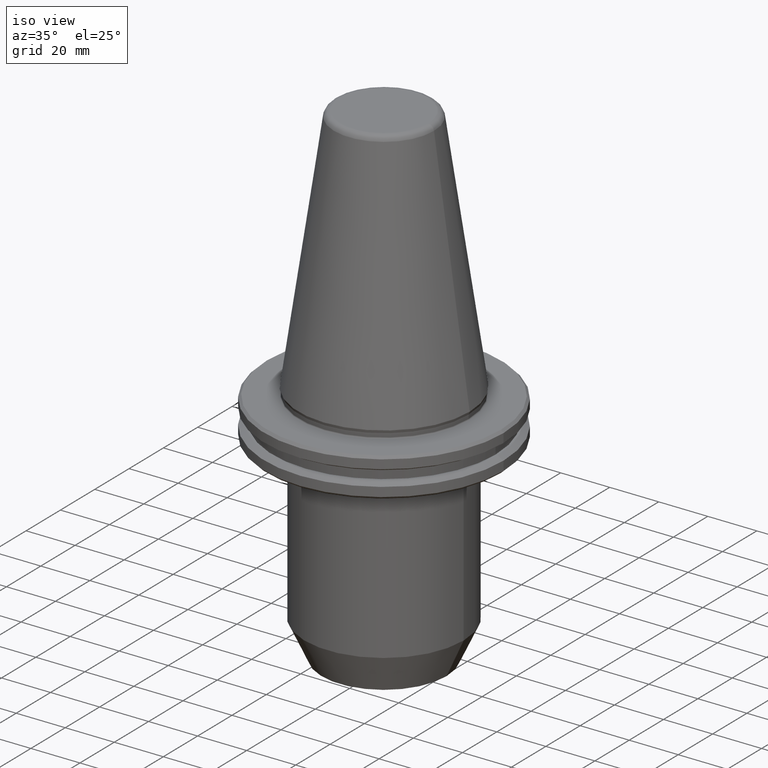
[diagram: clean part render]
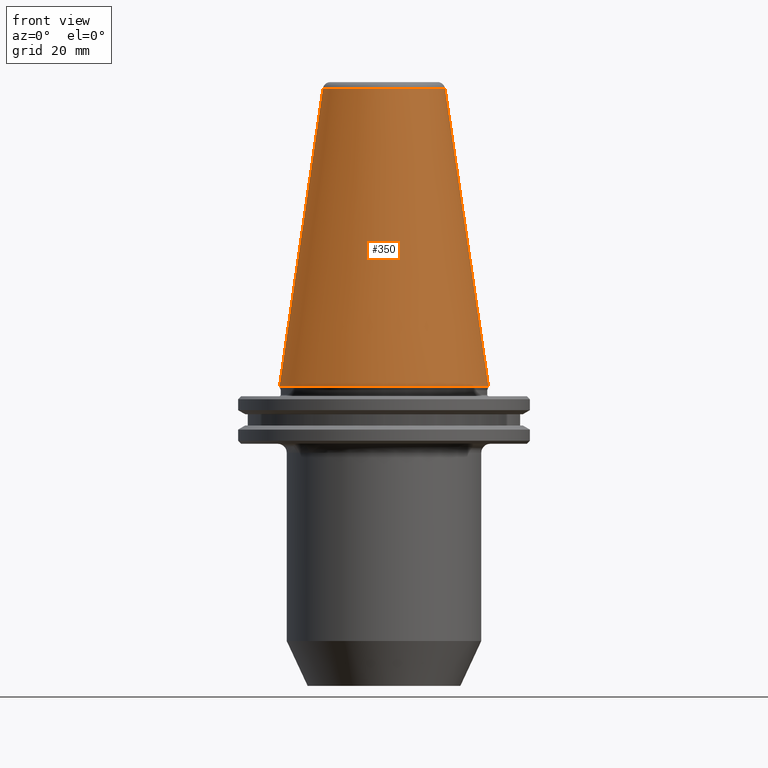
[diagram: tour spotlight — one face highlighted and labeled with its STEP entity id]
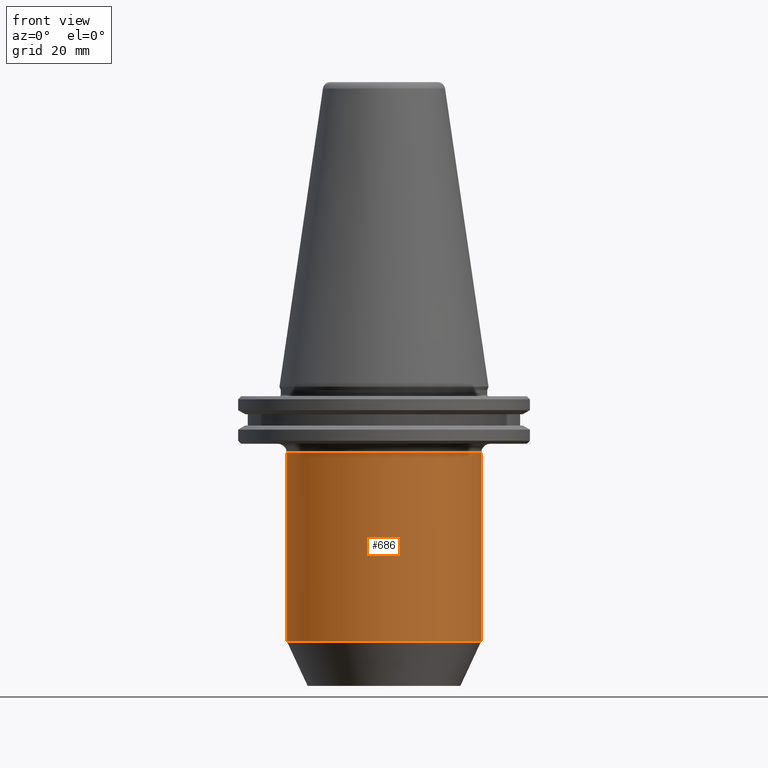
[diagram: tour spotlight — one face highlighted and labeled with its STEP entity id]
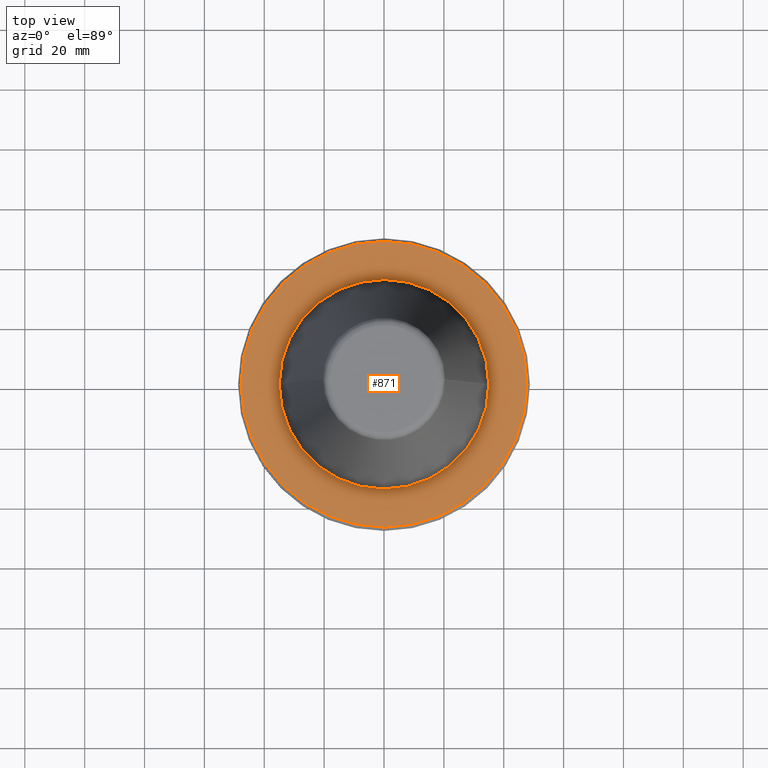
[diagram: tour spotlight — one face highlighted and labeled with its STEP entity id]
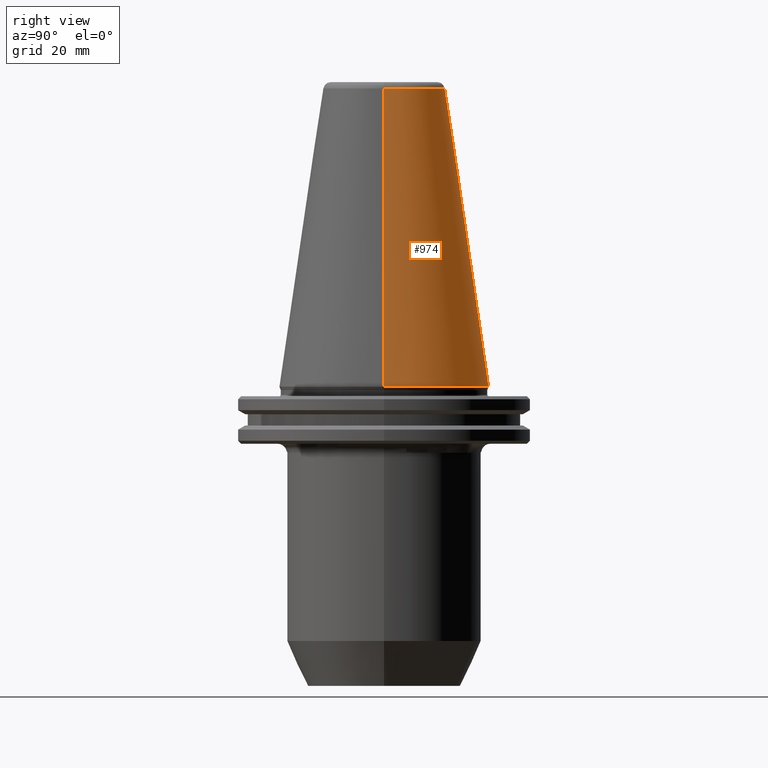
[diagram: tour spotlight — one face highlighted and labeled with its STEP entity id]
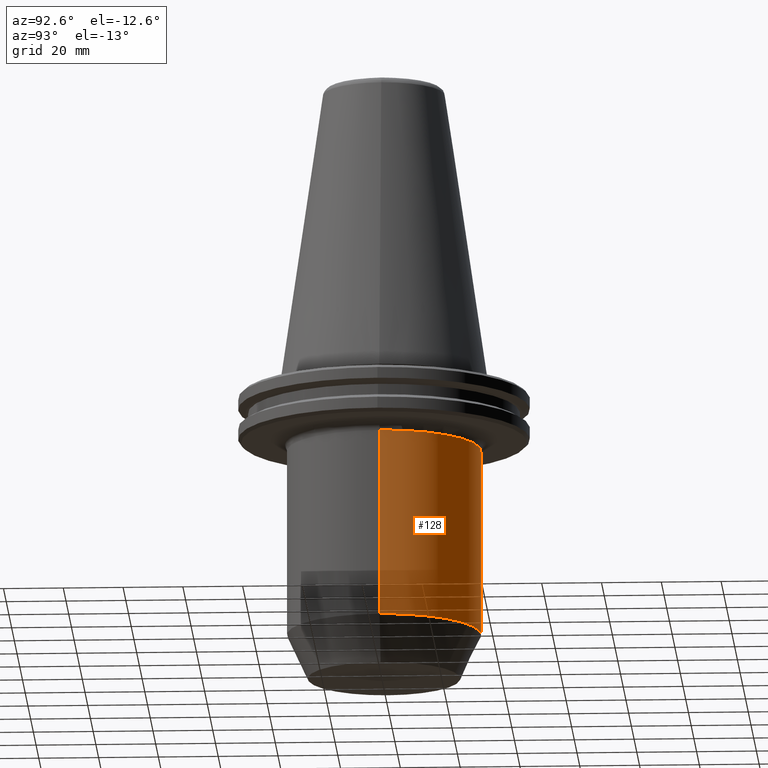
[diagram: tour spotlight — one face highlighted and labeled with its STEP entity id]
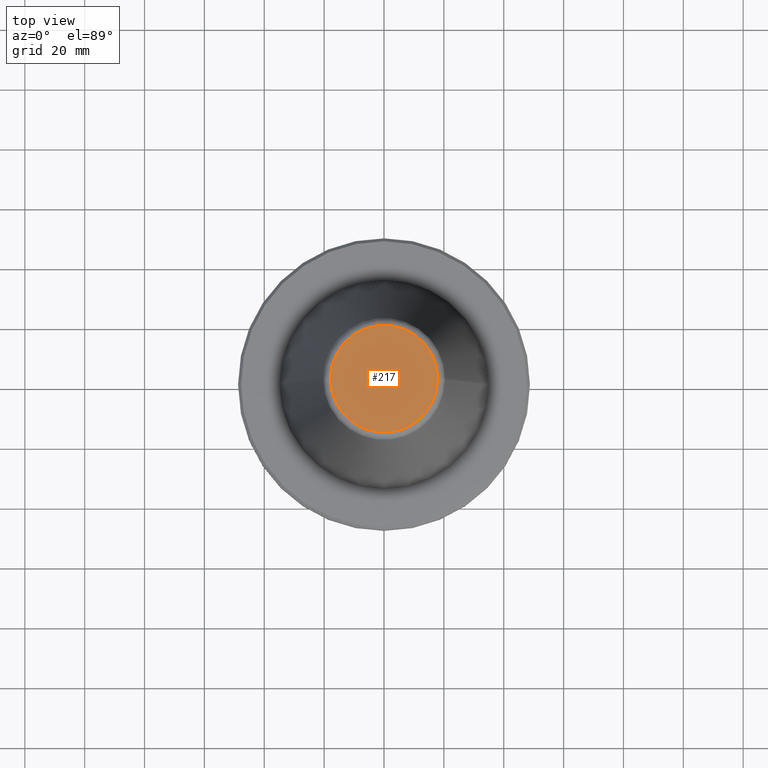
[diagram: tour spotlight — one face highlighted and labeled with its STEP entity id]
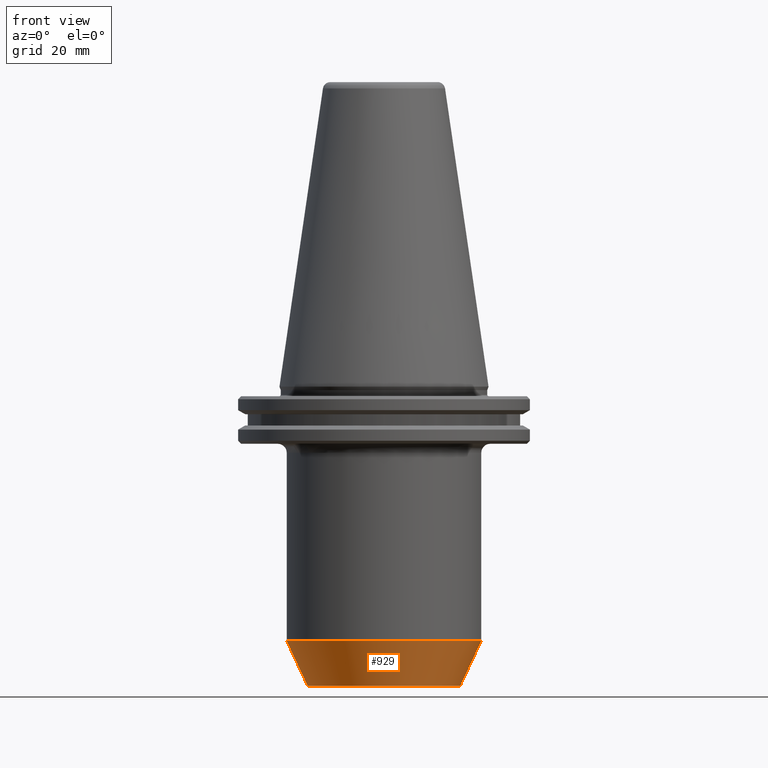
[diagram: tour spotlight — one face highlighted and labeled with its STEP entity id]
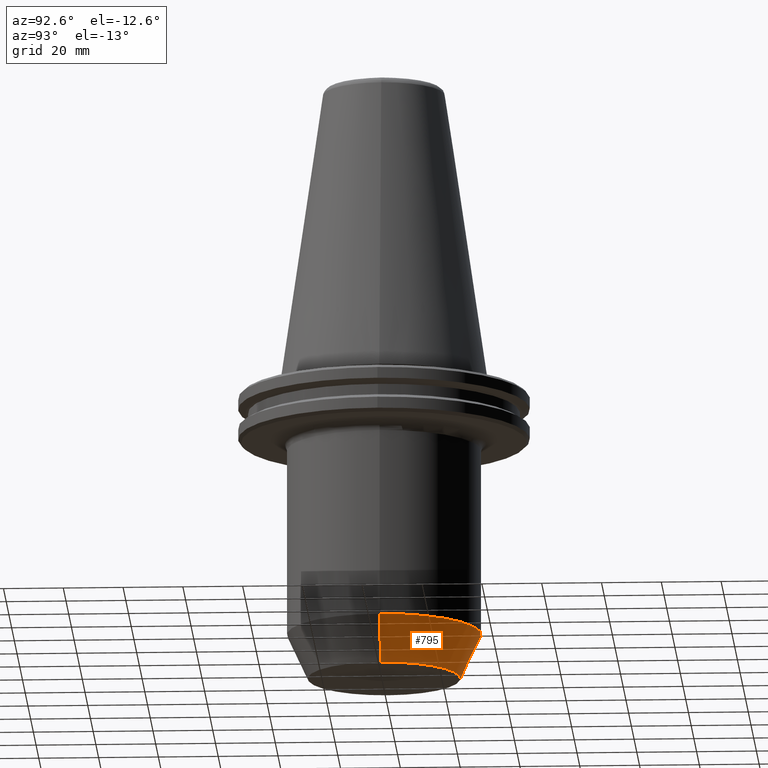
[diagram: tour spotlight — one face highlighted and labeled with its STEP entity id]
A machine part: a face-by-face anatomy tour. The part has 36 B-rep faces; the first image is the clean iso view, then the 8 largest visible faces are spotlighted one at a time (largest first), each with its STEP entity span.

Face 1 — front view, entity #350. In plain terms, the highlighted conical surface has half-angle 8.297 deg.
Definition (entity closure, byte-faithful):
#3 = DIRECTION ( 'NONE',  ( -0.1443082234293891500, 0.0000000000000000000, -0.9895327870518760800 ) ) ;
#9 = DIRECTION ( 'NONE',  ( 1.000000000000000000, 0.0000000000000000000, 0.0000000000000000000 ) ) ;
#66 = EDGE_CURVE ( 'NONE', #307, #143, #496, .T. ) ;
#71 = EDGE_CURVE ( 'NONE', #307, #755, #906, .T. ) ;
#87 = ORIENTED_EDGE ( 'NONE', *, *, #95, .T. ) ;
#95 = EDGE_CURVE ( 'NONE', #143, #934, #682, .T. ) ;
#103 = DIRECTION ( 'NONE',  ( -0.0000000000000000000, -0.0000000000000000000, 1.000000000000000000 ) ) ;
#120 = VECTOR ( 'NONE', #788, 1000.000000000000000 ) ;
#143 = VERTEX_POINT ( 'NONE', #868 ) ;
#179 = CARTESIAN_POINT ( 'NONE',  ( -34.92500000000009700, 0.0000000000000000000, -5.551115123125782700E-014 ) ) ;
#222 = ORIENTED_EDGE ( 'NONE', *, *, #361, .F. ) ;
#236 = CARTESIAN_POINT ( 'NONE',  ( 20.39829252569114000, 3.387574655494023600E-015, 99.61077055857353500 ) ) ;
#269 = AXIS2_PLACEMENT_3D ( 'NONE', #384, #989, #669 ) ;
#287 = CARTESIAN_POINT ( 'NONE',  ( 0.0000000000000000000, 0.0000000000000000000, -5.551115123125782700E-014 ) ) ;
#307 = VERTEX_POINT ( 'NONE', #446 ) ;
#313 = CONICAL_SURFACE ( 'NONE', #269, 34.92500000000009700, 0.1448138426689039600 ) ;
#317 = AXIS2_PLACEMENT_3D ( 'NONE', #797, #103, #564 ) ;
#350 = ADVANCED_FACE ( 'NONE', ( #938 ), #313, .T. ) ;
#361 = EDGE_CURVE ( 'NONE', #755, #934, #503, .T. ) ;
#384 = CARTESIAN_POINT ( 'NONE',  ( 0.0000000000000000000, 0.0000000000000000000, -5.551115123125782700E-014 ) ) ;
#399 = EDGE_LOOP ( 'NONE', ( #222, #626, #403, #87 ) ) ;
#403 = ORIENTED_EDGE ( 'NONE', *, *, #66, .T. ) ;
#446 = CARTESIAN_POINT ( 'NONE',  ( -20.39829252569114000, 0.0000000000000000000, 99.61077055857353500 ) ) ;
#455 = CARTESIAN_POINT ( 'NONE',  ( 34.92500000000009700, 0.0000000000000000000, -5.551115123125782700E-014 ) ) ;
#496 = LINE ( 'NONE', #179, #712 ) ;
#503 = LINE ( 'NONE', #602, #120 ) ;
#564 = DIRECTION ( 'NONE',  ( 1.000000000000000000, 0.0000000000000000000, 0.0000000000000000000 ) ) ;
#602 = CARTESIAN_POINT ( 'NONE',  ( 34.92500000000009700, 4.277078946022142700E-015, -5.551115123125782700E-014 ) ) ;
#624 = DIRECTION ( 'NONE',  ( -0.0000000000000000000, -0.0000000000000000000, 1.000000000000000000 ) ) ;
#626 = ORIENTED_EDGE ( 'NONE', *, *, #71, .F. ) ;
#669 = DIRECTION ( 'NONE',  ( -1.000000000000000000, 0.0000000000000000000, 0.0000000000000000000 ) ) ;
#682 = CIRCLE ( 'NONE', #731, 34.92500000000009700 ) ;
#712 = VECTOR ( 'NONE', #3, 1000.000000000000000 ) ;
#731 = AXIS2_PLACEMENT_3D ( 'NONE', #287, #624, #9 ) ;
#755 = VERTEX_POINT ( 'NONE', #236 ) ;
#788 = DIRECTION ( 'NONE',  ( 0.1443082234293891500, 1.767266039134425100E-017, -0.9895327870518760800 ) ) ;
#797 = CARTESIAN_POINT ( 'NONE',  ( 0.0000000000000000000, 0.0000000000000000000, 99.61077055857353500 ) ) ;
#868 = CARTESIAN_POINT ( 'NONE',  ( -34.92500000000009700, 4.277078946022142700E-015, -5.551115123125782700E-014 ) ) ;
#906 = CIRCLE ( 'NONE', #317, 20.39829252569114000 ) ;
#934 = VERTEX_POINT ( 'NONE', #455 ) ;
#938 = FACE_OUTER_BOUND ( 'NONE', #399, .T. ) ;
#989 = DIRECTION ( 'NONE',  ( 0.0000000000000000000, 0.0000000000000000000, -1.000000000000000000 ) ) ;

Face 2 — front view, entity #686. In plain terms, the highlighted cylindrical surface (partial cylindrical patch) has radius 32.5 mm, axis along (-0, -0, 1).
Definition (entity closure, byte-faithful):
#14 = LINE ( 'NONE', #598, #229 ) ;
#15 = CIRCLE ( 'NONE', #506, 32.50000000000000000 ) ;
#37 = EDGE_LOOP ( 'NONE', ( #876, #971, #736, #812 ) ) ;
#64 = VERTEX_POINT ( 'NONE', #823 ) ;
#100 = DIRECTION ( 'NONE',  ( 0.0000000000000000000, 0.0000000000000000000, -1.000000000000000000 ) ) ;
#159 = CARTESIAN_POINT ( 'NONE',  ( -32.50000000000000000, 3.980102097228898600E-015, -84.98845155643314800 ) ) ;
#229 = VECTOR ( 'NONE', #833, 1000.000000000000000 ) ;
#241 = DIRECTION ( 'NONE',  ( -0.0000000000000000000, -0.0000000000000000000, 1.000000000000000000 ) ) ;
#244 = CARTESIAN_POINT ( 'NONE',  ( 0.0000000000000000000, 0.0000000000000000000, 158.1180504483445200 ) ) ;
#276 = EDGE_CURVE ( 'NONE', #558, #983, #15, .T. ) ;
#308 = AXIS2_PLACEMENT_3D ( 'NONE', #244, #371, #311 ) ;
#311 = DIRECTION ( 'NONE',  ( 1.000000000000000000, 0.0000000000000000000, 0.0000000000000000000 ) ) ;
#371 = DIRECTION ( 'NONE',  ( -0.0000000000000000000, -0.0000000000000000000, 1.000000000000000000 ) ) ;
#377 = DIRECTION ( 'NONE',  ( -0.0000000000000000000, -0.0000000000000000000, 1.000000000000000000 ) ) ;
#426 = LINE ( 'NONE', #458, #834 ) ;
#458 = CARTESIAN_POINT ( 'NONE',  ( -32.50000000000000000, 3.980102097228898600E-015, 158.1180504483445200 ) ) ;
#482 = EDGE_CURVE ( 'NONE', #983, #765, #14, .T. ) ;
#506 = AXIS2_PLACEMENT_3D ( 'NONE', #907, #377, #835 ) ;
#558 = VERTEX_POINT ( 'NONE', #159 ) ;
#598 = CARTESIAN_POINT ( 'NONE',  ( 32.50000000000000000, 0.0000000000000000000, 158.1180504483445200 ) ) ;
#668 = CARTESIAN_POINT ( 'NONE',  ( 32.50000000000000000, 0.0000000000000000000, -22.09999999999995200 ) ) ;
#686 = ADVANCED_FACE ( 'NONE', ( #867 ), #845, .T. ) ;
#736 = ORIENTED_EDGE ( 'NONE', *, *, #482, .T. ) ;
#765 = VERTEX_POINT ( 'NONE', #668 ) ;
#767 = EDGE_CURVE ( 'NONE', #765, #64, #992, .T. ) ;
#812 = ORIENTED_EDGE ( 'NONE', *, *, #767, .T. ) ;
#823 = CARTESIAN_POINT ( 'NONE',  ( -32.50000000000000000, 3.980102097228898600E-015, -22.09999999999995200 ) ) ;
#833 = DIRECTION ( 'NONE',  ( -0.0000000000000000000, -0.0000000000000000000, 1.000000000000000000 ) ) ;
#834 = VECTOR ( 'NONE', #241, 1000.000000000000000 ) ;
#835 = DIRECTION ( 'NONE',  ( 1.000000000000000000, 0.0000000000000000000, 0.0000000000000000000 ) ) ;
#845 = CYLINDRICAL_SURFACE ( 'NONE', #308, 32.50000000000000000 ) ;
#867 = FACE_OUTER_BOUND ( 'NONE', #37, .T. ) ;
#874 = DIRECTION ( 'NONE',  ( 1.000000000000000000, 0.0000000000000000000, 0.0000000000000000000 ) ) ;
#876 = ORIENTED_EDGE ( 'NONE', *, *, #979, .F. ) ;
#907 = CARTESIAN_POINT ( 'NONE',  ( 0.0000000000000000000, 0.0000000000000000000, -84.98845155643314800 ) ) ;
#912 = CARTESIAN_POINT ( 'NONE',  ( 32.50000000000000000, 0.0000000000000000000, -84.98845155643314800 ) ) ;
#971 = ORIENTED_EDGE ( 'NONE', *, *, #276, .T. ) ;
#979 = EDGE_CURVE ( 'NONE', #558, #64, #426, .T. ) ;
#983 = VERTEX_POINT ( 'NONE', #912 ) ;
#990 = CARTESIAN_POINT ( 'NONE',  ( 0.0000000000000000000, 0.0000000000000000000, -22.09999999999995200 ) ) ;
#991 = AXIS2_PLACEMENT_3D ( 'NONE', #990, #100, #874 ) ;
#992 = CIRCLE ( 'NONE', #991, 32.50000000000000000 ) ;

Face 3 — top view, entity #871. In plain terms, the highlighted planar face has unit normal (0, 0, -1).
Definition (entity closure, byte-faithful):
#16 = DIRECTION ( 'NONE',  ( -0.0000000000000000000, -0.0000000000000000000, 1.000000000000000000 ) ) ;
#25 = CARTESIAN_POINT ( 'NONE',  ( 34.99999999999992200, 0.0000000000000000000, -3.199999999999966900 ) ) ;
#46 = AXIS2_PLACEMENT_3D ( 'NONE', #277, #265, #418 ) ;
#77 = AXIS2_PLACEMENT_3D ( 'NONE', #466, #80, #459 ) ;
#80 = DIRECTION ( 'NONE',  ( -0.0000000000000000000, -0.0000000000000000000, 1.000000000000000000 ) ) ;
#139 = DIRECTION ( 'NONE',  ( 1.000000000000000000, 0.0000000000000000000, 0.0000000000000000000 ) ) ;
#145 = FACE_OUTER_BOUND ( 'NONE', #722, .T. ) ;
#180 = VERTEX_POINT ( 'NONE', #687 ) ;
#200 = CIRCLE ( 'NONE', #438, 47.74999999999995700 ) ;
#223 = CARTESIAN_POINT ( 'NONE',  ( 0.0000000000000000000, 0.0000000000000000000, -3.199999999999869600 ) ) ;
#242 = AXIS2_PLACEMENT_3D ( 'NONE', #343, #16, #255 ) ;
#255 = DIRECTION ( 'NONE',  ( 1.000000000000000000, 0.0000000000000000000, 0.0000000000000000000 ) ) ;
#265 = DIRECTION ( 'NONE',  ( -0.0000000000000000000, -0.0000000000000000000, 1.000000000000000000 ) ) ;
#277 = CARTESIAN_POINT ( 'NONE',  ( 0.0000000000000000000, 0.0000000000000000000, -3.199999999999869600 ) ) ;
#283 = CARTESIAN_POINT ( 'NONE',  ( 47.74999999999995700, 5.908920805885974100E-015, -3.199999999999869600 ) ) ;
#285 = EDGE_CURVE ( 'NONE', #597, #827, #200, .T. ) ;
#339 = EDGE_LOOP ( 'NONE', ( #352, #927 ) ) ;
#343 = CARTESIAN_POINT ( 'NONE',  ( 0.0000000000000000000, 0.0000000000000000000, -3.199999999999869600 ) ) ;
#352 = ORIENTED_EDGE ( 'NONE', *, *, #678, .F. ) ;
#402 = EDGE_CURVE ( 'NONE', #827, #597, #735, .T. ) ;
#418 = DIRECTION ( 'NONE',  ( 1.000000000000000000, 0.0000000000000000000, 0.0000000000000000000 ) ) ;
#438 = AXIS2_PLACEMENT_3D ( 'NONE', #223, #676, #139 ) ;
#447 = DIRECTION ( 'NONE',  ( -1.000000000000000000, 0.0000000000000000000, -0.0000000000000000000 ) ) ;
#459 = DIRECTION ( 'NONE',  ( 1.000000000000000000, 0.0000000000000000000, 0.0000000000000000000 ) ) ;
#466 = CARTESIAN_POINT ( 'NONE',  ( 0.0000000000000000000, 0.0000000000000000000, -3.199999999999869600 ) ) ;
#469 = CARTESIAN_POINT ( 'NONE',  ( -47.74999999999995700, 0.0000000000000000000, -3.199999999999869600 ) ) ;
#479 = CIRCLE ( 'NONE', #46, 34.99999999999992200 ) ;
#483 = CARTESIAN_POINT ( 'NONE',  ( 0.0000000000000000000, 47.74999999999995700, -3.199999999999869600 ) ) ;
#516 = DIRECTION ( 'NONE',  ( 0.0000000000000000000, 0.0000000000000000000, -1.000000000000000000 ) ) ;
#536 = FACE_BOUND ( 'NONE', #339, .T. ) ;
#573 = ORIENTED_EDGE ( 'NONE', *, *, #285, .T. ) ;
#597 = VERTEX_POINT ( 'NONE', #469 ) ;
#628 = AXIS2_PLACEMENT_3D ( 'NONE', #483, #516, #447 ) ;
#639 = EDGE_CURVE ( 'NONE', #180, #710, #913, .T. ) ;
#676 = DIRECTION ( 'NONE',  ( -0.0000000000000000000, -0.0000000000000000000, 1.000000000000000000 ) ) ;
#678 = EDGE_CURVE ( 'NONE', #710, #180, #479, .T. ) ;
#687 = CARTESIAN_POINT ( 'NONE',  ( -34.99999999999992200, 4.286263797015727000E-015, -3.199999999999966900 ) ) ;
#698 = PLANE ( 'NONE',  #628 ) ;
#710 = VERTEX_POINT ( 'NONE', #25 ) ;
#722 = EDGE_LOOP ( 'NONE', ( #573, #768 ) ) ;
#735 = CIRCLE ( 'NONE', #242, 47.74999999999995700 ) ;
#768 = ORIENTED_EDGE ( 'NONE', *, *, #402, .T. ) ;
#827 = VERTEX_POINT ( 'NONE', #283 ) ;
#871 = ADVANCED_FACE ( 'NONE', ( #536, #145 ), #698, .F. ) ;
#913 = CIRCLE ( 'NONE', #77, 34.99999999999992200 ) ;
#927 = ORIENTED_EDGE ( 'NONE', *, *, #639, .F. ) ;

Face 4 — right view, entity #974. In plain terms, the highlighted conical surface has half-angle 8.297 deg.
Definition (entity closure, byte-faithful):
#3 = DIRECTION ( 'NONE',  ( -0.1443082234293891500, 0.0000000000000000000, -0.9895327870518760800 ) ) ;
#22 = DIRECTION ( 'NONE',  ( -0.0000000000000000000, -0.0000000000000000000, 1.000000000000000000 ) ) ;
#66 = EDGE_CURVE ( 'NONE', #307, #143, #496, .T. ) ;
#108 = AXIS2_PLACEMENT_3D ( 'NONE', #492, #22, #181 ) ;
#112 = EDGE_CURVE ( 'NONE', #755, #307, #477, .T. ) ;
#120 = VECTOR ( 'NONE', #788, 1000.000000000000000 ) ;
#143 = VERTEX_POINT ( 'NONE', #868 ) ;
#149 = DIRECTION ( 'NONE',  ( -1.000000000000000000, 0.0000000000000000000, 0.0000000000000000000 ) ) ;
#179 = CARTESIAN_POINT ( 'NONE',  ( -34.92500000000009700, 0.0000000000000000000, -5.551115123125782700E-014 ) ) ;
#181 = DIRECTION ( 'NONE',  ( 1.000000000000000000, 0.0000000000000000000, 0.0000000000000000000 ) ) ;
#227 = CONICAL_SURFACE ( 'NONE', #865, 34.92500000000009700, 0.1448138426689039600 ) ;
#236 = CARTESIAN_POINT ( 'NONE',  ( 20.39829252569114000, 3.387574655494023600E-015, 99.61077055857353500 ) ) ;
#280 = DIRECTION ( 'NONE',  ( 1.000000000000000000, 0.0000000000000000000, 0.0000000000000000000 ) ) ;
#307 = VERTEX_POINT ( 'NONE', #446 ) ;
#321 = ORIENTED_EDGE ( 'NONE', *, *, #112, .F. ) ;
#353 = ORIENTED_EDGE ( 'NONE', *, *, #361, .T. ) ;
#361 = EDGE_CURVE ( 'NONE', #755, #934, #503, .T. ) ;
#385 = DIRECTION ( 'NONE',  ( 0.0000000000000000000, 0.0000000000000000000, -1.000000000000000000 ) ) ;
#446 = CARTESIAN_POINT ( 'NONE',  ( -20.39829252569114000, 0.0000000000000000000, 99.61077055857353500 ) ) ;
#455 = CARTESIAN_POINT ( 'NONE',  ( 34.92500000000009700, 0.0000000000000000000, -5.551115123125782700E-014 ) ) ;
#477 = CIRCLE ( 'NONE', #646, 20.39829252569114000 ) ;
#492 = CARTESIAN_POINT ( 'NONE',  ( 0.0000000000000000000, 0.0000000000000000000, -5.551115123125782700E-014 ) ) ;
#496 = LINE ( 'NONE', #179, #712 ) ;
#503 = LINE ( 'NONE', #602, #120 ) ;
#551 = ORIENTED_EDGE ( 'NONE', *, *, #66, .F. ) ;
#555 = CIRCLE ( 'NONE', #108, 34.92500000000009700 ) ;
#565 = EDGE_CURVE ( 'NONE', #934, #143, #555, .T. ) ;
#602 = CARTESIAN_POINT ( 'NONE',  ( 34.92500000000009700, 4.277078946022142700E-015, -5.551115123125782700E-014 ) ) ;
#646 = AXIS2_PLACEMENT_3D ( 'NONE', #778, #843, #280 ) ;
#689 = CARTESIAN_POINT ( 'NONE',  ( 0.0000000000000000000, 0.0000000000000000000, -5.551115123125782700E-014 ) ) ;
#712 = VECTOR ( 'NONE', #3, 1000.000000000000000 ) ;
#755 = VERTEX_POINT ( 'NONE', #236 ) ;
#757 = ORIENTED_EDGE ( 'NONE', *, *, #565, .T. ) ;
#778 = CARTESIAN_POINT ( 'NONE',  ( 0.0000000000000000000, 0.0000000000000000000, 99.61077055857353500 ) ) ;
#788 = DIRECTION ( 'NONE',  ( 0.1443082234293891500, 1.767266039134425100E-017, -0.9895327870518760800 ) ) ;
#843 = DIRECTION ( 'NONE',  ( -0.0000000000000000000, -0.0000000000000000000, 1.000000000000000000 ) ) ;
#859 = FACE_OUTER_BOUND ( 'NONE', #886, .T. ) ;
#865 = AXIS2_PLACEMENT_3D ( 'NONE', #689, #385, #149 ) ;
#868 = CARTESIAN_POINT ( 'NONE',  ( -34.92500000000009700, 4.277078946022142700E-015, -5.551115123125782700E-014 ) ) ;
#886 = EDGE_LOOP ( 'NONE', ( #321, #353, #757, #551 ) ) ;
#934 = VERTEX_POINT ( 'NONE', #455 ) ;
#974 = ADVANCED_FACE ( 'NONE', ( #859 ), #227, .T. ) ;

Face 5 — auxiliary view, entity #128. In plain terms, the highlighted cylindrical surface (partial cylindrical patch) has radius 32.5 mm, axis along (-0, -0, 1).
Definition (entity closure, byte-faithful):
#14 = LINE ( 'NONE', #598, #229 ) ;
#18 = CYLINDRICAL_SURFACE ( 'NONE', #1001, 32.50000000000000000 ) ;
#21 = AXIS2_PLACEMENT_3D ( 'NONE', #621, #135, #84 ) ;
#31 = CARTESIAN_POINT ( 'NONE',  ( 0.0000000000000000000, 0.0000000000000000000, -22.09999999999995200 ) ) ;
#40 = CARTESIAN_POINT ( 'NONE',  ( 0.0000000000000000000, 0.0000000000000000000, 158.1180504483445200 ) ) ;
#51 = ORIENTED_EDGE ( 'NONE', *, *, #764, .T. ) ;
#64 = VERTEX_POINT ( 'NONE', #823 ) ;
#84 = DIRECTION ( 'NONE',  ( 1.000000000000000000, 0.0000000000000000000, 0.0000000000000000000 ) ) ;
#99 = DIRECTION ( 'NONE',  ( -0.0000000000000000000, -0.0000000000000000000, 1.000000000000000000 ) ) ;
#128 = ADVANCED_FACE ( 'NONE', ( #453 ), #18, .T. ) ;
#135 = DIRECTION ( 'NONE',  ( -0.0000000000000000000, -0.0000000000000000000, 1.000000000000000000 ) ) ;
#159 = CARTESIAN_POINT ( 'NONE',  ( -32.50000000000000000, 3.980102097228898600E-015, -84.98845155643314800 ) ) ;
#164 = EDGE_CURVE ( 'NONE', #64, #765, #450, .T. ) ;
#229 = VECTOR ( 'NONE', #833, 1000.000000000000000 ) ;
#241 = DIRECTION ( 'NONE',  ( -0.0000000000000000000, -0.0000000000000000000, 1.000000000000000000 ) ) ;
#355 = DIRECTION ( 'NONE',  ( 0.0000000000000000000, 0.0000000000000000000, -1.000000000000000000 ) ) ;
#426 = LINE ( 'NONE', #458, #834 ) ;
#450 = CIRCLE ( 'NONE', #590, 32.50000000000000000 ) ;
#453 = FACE_OUTER_BOUND ( 'NONE', #634, .T. ) ;
#458 = CARTESIAN_POINT ( 'NONE',  ( -32.50000000000000000, 3.980102097228898600E-015, 158.1180504483445200 ) ) ;
#482 = EDGE_CURVE ( 'NONE', #983, #765, #14, .T. ) ;
#484 = ORIENTED_EDGE ( 'NONE', *, *, #979, .T. ) ;
#533 = DIRECTION ( 'NONE',  ( 1.000000000000000000, 0.0000000000000000000, 0.0000000000000000000 ) ) ;
#558 = VERTEX_POINT ( 'NONE', #159 ) ;
#587 = CIRCLE ( 'NONE', #21, 32.50000000000000000 ) ;
#590 = AXIS2_PLACEMENT_3D ( 'NONE', #31, #355, #533 ) ;
#598 = CARTESIAN_POINT ( 'NONE',  ( 32.50000000000000000, 0.0000000000000000000, 158.1180504483445200 ) ) ;
#621 = CARTESIAN_POINT ( 'NONE',  ( 0.0000000000000000000, 0.0000000000000000000, -84.98845155643314800 ) ) ;
#634 = EDGE_LOOP ( 'NONE', ( #51, #484, #663, #892 ) ) ;
#663 = ORIENTED_EDGE ( 'NONE', *, *, #164, .T. ) ;
#668 = CARTESIAN_POINT ( 'NONE',  ( 32.50000000000000000, 0.0000000000000000000, -22.09999999999995200 ) ) ;
#764 = EDGE_CURVE ( 'NONE', #983, #558, #587, .T. ) ;
#765 = VERTEX_POINT ( 'NONE', #668 ) ;
#815 = DIRECTION ( 'NONE',  ( 1.000000000000000000, 0.0000000000000000000, 0.0000000000000000000 ) ) ;
#823 = CARTESIAN_POINT ( 'NONE',  ( -32.50000000000000000, 3.980102097228898600E-015, -22.09999999999995200 ) ) ;
#833 = DIRECTION ( 'NONE',  ( -0.0000000000000000000, -0.0000000000000000000, 1.000000000000000000 ) ) ;
#834 = VECTOR ( 'NONE', #241, 1000.000000000000000 ) ;
#892 = ORIENTED_EDGE ( 'NONE', *, *, #482, .F. ) ;
#912 = CARTESIAN_POINT ( 'NONE',  ( 32.50000000000000000, 0.0000000000000000000, -84.98845155643314800 ) ) ;
#979 = EDGE_CURVE ( 'NONE', #558, #64, #426, .T. ) ;
#983 = VERTEX_POINT ( 'NONE', #912 ) ;
#1001 = AXIS2_PLACEMENT_3D ( 'NONE', #40, #99, #815 ) ;

Face 6 — top view, entity #217. In plain terms, the highlighted planar face has unit normal (0, 0, -1).
Definition (entity closure, byte-faithful):
#155 = EDGE_CURVE ( 'NONE', #195, #497, #987, .T. ) ;
#195 = VERTEX_POINT ( 'NONE', #512 ) ;
#213 = DIRECTION ( 'NONE',  ( 0.0000000000000000000, 0.0000000000000000000, -1.000000000000000000 ) ) ;
#217 = ADVANCED_FACE ( 'NONE', ( #230 ), #378, .F. ) ;
#230 = FACE_OUTER_BOUND ( 'NONE', #570, .T. ) ;
#295 = CARTESIAN_POINT ( 'NONE',  ( 0.0000000000000000000, 17.92446055806129500, 101.7500000000000100 ) ) ;
#331 = EDGE_CURVE ( 'NONE', #497, #195, #958, .T. ) ;
#378 = PLANE ( 'NONE',  #490 ) ;
#393 = AXIS2_PLACEMENT_3D ( 'NONE', #967, #443, #899 ) ;
#443 = DIRECTION ( 'NONE',  ( -0.0000000000000000000, -0.0000000000000000000, 1.000000000000000000 ) ) ;
#490 = AXIS2_PLACEMENT_3D ( 'NONE', #295, #213, #667 ) ;
#497 = VERTEX_POINT ( 'NONE', #822 ) ;
#498 = DIRECTION ( 'NONE',  ( -0.0000000000000000000, -0.0000000000000000000, 1.000000000000000000 ) ) ;
#512 = CARTESIAN_POINT ( 'NONE',  ( 17.92446055806129500, 0.0000000000000000000, 101.7500000000000900 ) ) ;
#570 = EDGE_LOOP ( 'NONE', ( #883, #939 ) ) ;
#667 = DIRECTION ( 'NONE',  ( -1.000000000000000000, 0.0000000000000000000, -0.0000000000000000000 ) ) ;
#741 = DIRECTION ( 'NONE',  ( 1.000000000000000000, 0.0000000000000000000, 0.0000000000000000000 ) ) ;
#769 = AXIS2_PLACEMENT_3D ( 'NONE', #961, #498, #741 ) ;
#822 = CARTESIAN_POINT ( 'NONE',  ( -17.92446055806129500, 2.346591844926584100E-015, 101.7500000000000900 ) ) ;
#883 = ORIENTED_EDGE ( 'NONE', *, *, #155, .T. ) ;
#899 = DIRECTION ( 'NONE',  ( 1.000000000000000000, 0.0000000000000000000, 0.0000000000000000000 ) ) ;
#939 = ORIENTED_EDGE ( 'NONE', *, *, #331, .T. ) ;
#958 = CIRCLE ( 'NONE', #393, 17.92446055806129500 ) ;
#961 = CARTESIAN_POINT ( 'NONE',  ( 0.0000000000000000000, 0.0000000000000000000, 101.7500000000000900 ) ) ;
#967 = CARTESIAN_POINT ( 'NONE',  ( 0.0000000000000000000, 0.0000000000000000000, 101.7500000000000900 ) ) ;
#987 = CIRCLE ( 'NONE', #769, 17.92446055806129500 ) ;

Face 7 — front view, entity #929. In plain terms, the highlighted conical surface has half-angle 25 deg.
Definition (entity closure, byte-faithful):
#15 = CIRCLE ( 'NONE', #506, 32.50000000000000000 ) ;
#33 = CONICAL_SURFACE ( 'NONE', #583, 25.50000000000000000, 0.4363323129985837200 ) ;
#131 = EDGE_CURVE ( 'NONE', #301, #558, #635, .T. ) ;
#159 = CARTESIAN_POINT ( 'NONE',  ( -32.50000000000000000, 3.980102097228898600E-015, -84.98845155643314800 ) ) ;
#168 = ORIENTED_EDGE ( 'NONE', *, *, #276, .F. ) ;
#171 = AXIS2_PLACEMENT_3D ( 'NONE', #944, #366, #807 ) ;
#224 = CARTESIAN_POINT ( 'NONE',  ( 25.50000000000000000, 0.0000000000000000000, -100.0000000000000000 ) ) ;
#276 = EDGE_CURVE ( 'NONE', #558, #983, #15, .T. ) ;
#282 = CARTESIAN_POINT ( 'NONE',  ( -25.50000000000000000, 3.122849337825750200E-015, -100.0000000000000000 ) ) ;
#288 = CARTESIAN_POINT ( 'NONE',  ( 25.50000000000000000, 0.0000000000000000000, -100.0000000000000000 ) ) ;
#297 = VECTOR ( 'NONE', #520, 1000.000000000000000 ) ;
#301 = VERTEX_POINT ( 'NONE', #515 ) ;
#306 = DIRECTION ( 'NONE',  ( 1.000000000000000000, 0.0000000000000000000, 0.0000000000000000000 ) ) ;
#337 = ORIENTED_EDGE ( 'NONE', *, *, #500, .T. ) ;
#366 = DIRECTION ( 'NONE',  ( -0.0000000000000000000, -0.0000000000000000000, 1.000000000000000000 ) ) ;
#377 = DIRECTION ( 'NONE',  ( -0.0000000000000000000, -0.0000000000000000000, 1.000000000000000000 ) ) ;
#392 = DIRECTION ( 'NONE',  ( -0.0000000000000000000, -0.0000000000000000000, 1.000000000000000000 ) ) ;
#432 = VECTOR ( 'NONE', #494, 1000.000000000000000 ) ;
#491 = LINE ( 'NONE', #224, #297 ) ;
#494 = DIRECTION ( 'NONE',  ( -0.4226182617407006100, 5.175581015019673000E-017, 0.9063077870366493800 ) ) ;
#500 = EDGE_CURVE ( 'NONE', #301, #505, #605, .T. ) ;
#505 = VERTEX_POINT ( 'NONE', #288 ) ;
#506 = AXIS2_PLACEMENT_3D ( 'NONE', #907, #377, #835 ) ;
#515 = CARTESIAN_POINT ( 'NONE',  ( -25.50000000000000000, 3.551475717527324000E-015, -100.0000000000000000 ) ) ;
#520 = DIRECTION ( 'NONE',  ( 0.4226182617407006100, 0.0000000000000000000, 0.9063077870366493800 ) ) ;
#527 = CARTESIAN_POINT ( 'NONE',  ( 0.0000000000000000000, 0.0000000000000000000, -100.0000000000000000 ) ) ;
#558 = VERTEX_POINT ( 'NONE', #159 ) ;
#571 = EDGE_LOOP ( 'NONE', ( #840, #337, #730, #168 ) ) ;
#583 = AXIS2_PLACEMENT_3D ( 'NONE', #527, #392, #306 ) ;
#605 = CIRCLE ( 'NONE', #171, 25.50000000000000000 ) ;
#635 = LINE ( 'NONE', #282, #432 ) ;
#671 = FACE_OUTER_BOUND ( 'NONE', #571, .T. ) ;
#730 = ORIENTED_EDGE ( 'NONE', *, *, #890, .T. ) ;
#807 = DIRECTION ( 'NONE',  ( 1.000000000000000000, 0.0000000000000000000, 0.0000000000000000000 ) ) ;
#835 = DIRECTION ( 'NONE',  ( 1.000000000000000000, 0.0000000000000000000, 0.0000000000000000000 ) ) ;
#840 = ORIENTED_EDGE ( 'NONE', *, *, #131, .F. ) ;
#890 = EDGE_CURVE ( 'NONE', #505, #983, #491, .T. ) ;
#907 = CARTESIAN_POINT ( 'NONE',  ( 0.0000000000000000000, 0.0000000000000000000, -84.98845155643314800 ) ) ;
#912 = CARTESIAN_POINT ( 'NONE',  ( 32.50000000000000000, 0.0000000000000000000, -84.98845155643314800 ) ) ;
#929 = ADVANCED_FACE ( 'NONE', ( #671 ), #33, .T. ) ;
#944 = CARTESIAN_POINT ( 'NONE',  ( 0.0000000000000000000, 0.0000000000000000000, -100.0000000000000000 ) ) ;
#983 = VERTEX_POINT ( 'NONE', #912 ) ;

Face 8 — auxiliary view, entity #795. In plain terms, the highlighted conical surface has half-angle 25 deg.
Definition (entity closure, byte-faithful):
#21 = AXIS2_PLACEMENT_3D ( 'NONE', #621, #135, #84 ) ;
#47 = ORIENTED_EDGE ( 'NONE', *, *, #890, .F. ) ;
#78 = EDGE_CURVE ( 'NONE', #505, #301, #750, .T. ) ;
#79 = CARTESIAN_POINT ( 'NONE',  ( 0.0000000000000000000, 0.0000000000000000000, -100.0000000000000000 ) ) ;
#84 = DIRECTION ( 'NONE',  ( 1.000000000000000000, 0.0000000000000000000, 0.0000000000000000000 ) ) ;
#127 = ORIENTED_EDGE ( 'NONE', *, *, #131, .T. ) ;
#131 = EDGE_CURVE ( 'NONE', #301, #558, #635, .T. ) ;
#135 = DIRECTION ( 'NONE',  ( -0.0000000000000000000, -0.0000000000000000000, 1.000000000000000000 ) ) ;
#159 = CARTESIAN_POINT ( 'NONE',  ( -32.50000000000000000, 3.980102097228898600E-015, -84.98845155643314800 ) ) ;
#183 = FACE_OUTER_BOUND ( 'NONE', #962, .T. ) ;
#224 = CARTESIAN_POINT ( 'NONE',  ( 25.50000000000000000, 0.0000000000000000000, -100.0000000000000000 ) ) ;
#282 = CARTESIAN_POINT ( 'NONE',  ( -25.50000000000000000, 3.122849337825750200E-015, -100.0000000000000000 ) ) ;
#288 = CARTESIAN_POINT ( 'NONE',  ( 25.50000000000000000, 0.0000000000000000000, -100.0000000000000000 ) ) ;
#296 = AXIS2_PLACEMENT_3D ( 'NONE', #347, #387, #930 ) ;
#297 = VECTOR ( 'NONE', #520, 1000.000000000000000 ) ;
#301 = VERTEX_POINT ( 'NONE', #515 ) ;
#347 = CARTESIAN_POINT ( 'NONE',  ( 0.0000000000000000000, 0.0000000000000000000, -100.0000000000000000 ) ) ;
#387 = DIRECTION ( 'NONE',  ( -0.0000000000000000000, -0.0000000000000000000, 1.000000000000000000 ) ) ;
#432 = VECTOR ( 'NONE', #494, 1000.000000000000000 ) ;
#464 = DIRECTION ( 'NONE',  ( 1.000000000000000000, 0.0000000000000000000, 0.0000000000000000000 ) ) ;
#491 = LINE ( 'NONE', #224, #297 ) ;
#494 = DIRECTION ( 'NONE',  ( -0.4226182617407006100, 5.175581015019673000E-017, 0.9063077870366493800 ) ) ;
#505 = VERTEX_POINT ( 'NONE', #288 ) ;
#515 = CARTESIAN_POINT ( 'NONE',  ( -25.50000000000000000, 3.551475717527324000E-015, -100.0000000000000000 ) ) ;
#520 = DIRECTION ( 'NONE',  ( 0.4226182617407006100, 0.0000000000000000000, 0.9063077870366493800 ) ) ;
#558 = VERTEX_POINT ( 'NONE', #159 ) ;
#585 = DIRECTION ( 'NONE',  ( -0.0000000000000000000, -0.0000000000000000000, 1.000000000000000000 ) ) ;
#587 = CIRCLE ( 'NONE', #21, 32.50000000000000000 ) ;
#621 = CARTESIAN_POINT ( 'NONE',  ( 0.0000000000000000000, 0.0000000000000000000, -84.98845155643314800 ) ) ;
#635 = LINE ( 'NONE', #282, #432 ) ;
#740 = CONICAL_SURFACE ( 'NONE', #963, 25.50000000000000000, 0.4363323129985837200 ) ;
#750 = CIRCLE ( 'NONE', #296, 25.50000000000000000 ) ;
#764 = EDGE_CURVE ( 'NONE', #983, #558, #587, .T. ) ;
#795 = ADVANCED_FACE ( 'NONE', ( #183 ), #740, .T. ) ;
#890 = EDGE_CURVE ( 'NONE', #505, #983, #491, .T. ) ;
#909 = ORIENTED_EDGE ( 'NONE', *, *, #764, .F. ) ;
#912 = CARTESIAN_POINT ( 'NONE',  ( 32.50000000000000000, 0.0000000000000000000, -84.98845155643314800 ) ) ;
#921 = ORIENTED_EDGE ( 'NONE', *, *, #78, .T. ) ;
#930 = DIRECTION ( 'NONE',  ( 1.000000000000000000, 0.0000000000000000000, 0.0000000000000000000 ) ) ;
#962 = EDGE_LOOP ( 'NONE', ( #921, #127, #909, #47 ) ) ;
#963 = AXIS2_PLACEMENT_3D ( 'NONE', #79, #585, #464 ) ;
#983 = VERTEX_POINT ( 'NONE', #912 ) ;